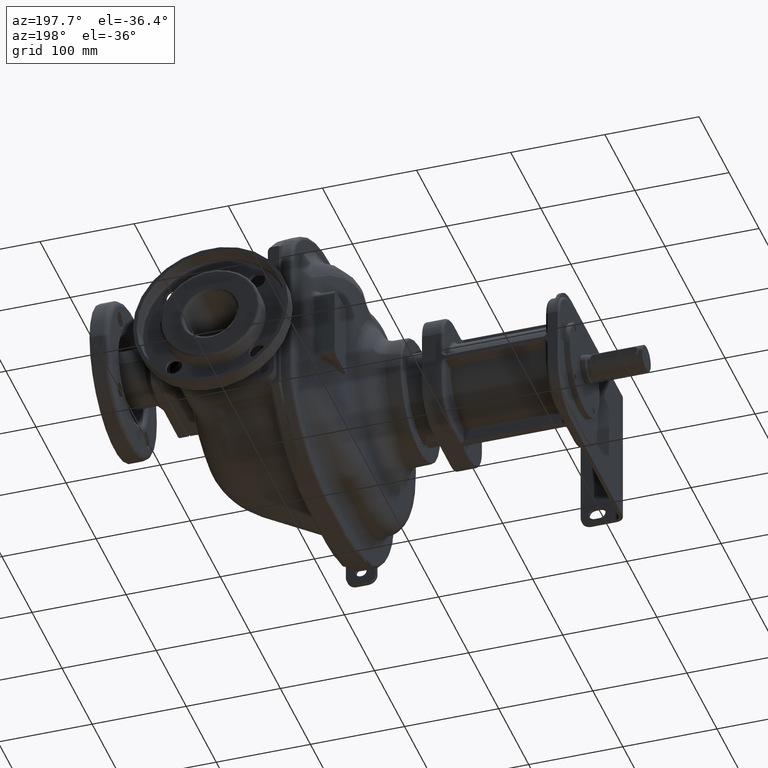
[diagram: clean part render]
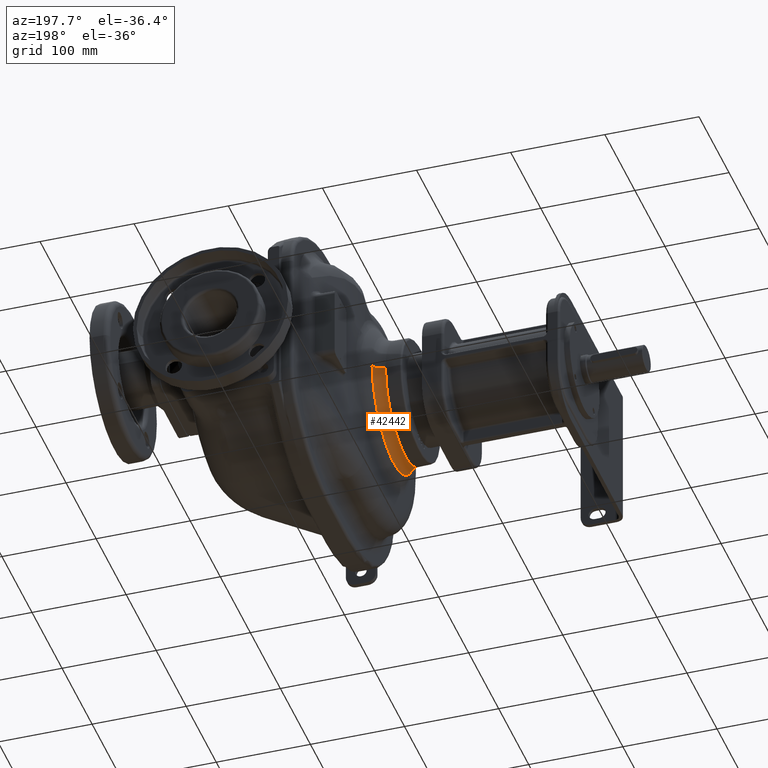
[diagram: same view with one face highlighted and labeled with its STEP entity id]
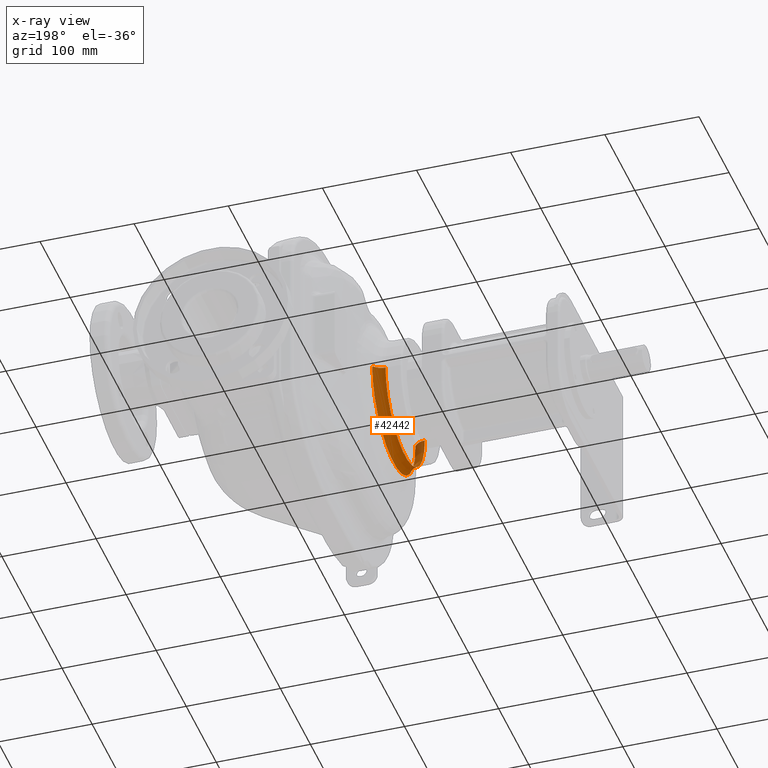
[diagram: x-ray of the same camera — body ghosted, the highlighted face saturated]
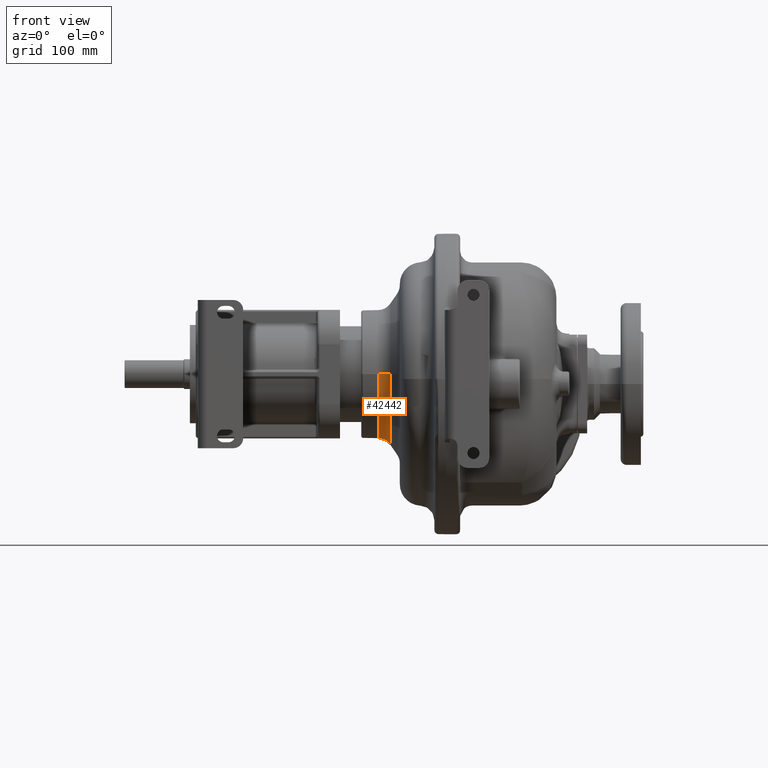
[diagram: same view with one face highlighted and labeled with its STEP entity id]
A machine part, auxiliary view. The second image highlights one B-rep face of the part: STEP entity #42442.
The next image is the same camera in x-ray: the body ghosted, the highlighted face saturated — about 6% of this face is hidden behind the body in this view.
A second angle (front view) of the same face is appended — the face is thin or edge-on in the first view.
In plain terms, the highlighted toroidal blend (fillet) surface has major radius 80.2531 mm and minor (blend) radius 15 mm.
Its self-contained STEP definition (entity closure, byte-faithful):
#12053=CARTESIAN_POINT('',(-8.434400837536E1,0.E0,0.E0));
#12054=DIRECTION('',(-1.E0,0.E0,0.E0));
#12055=DIRECTION('',(0.E0,1.E0,0.E0));
#12056=AXIS2_PLACEMENT_3D('',#12053,#12054,#12055);
#12063=CARTESIAN_POINT('',(-9.663128903969E1,8.025309170341E1,
1.146746031627E-10));
#12064=DIRECTION('',(0.E0,1.428912543844E-12,-1.E0));
#12065=DIRECTION('',(8.191520442893E-1,-5.735764363506E-1,-8.195898027927E-13));
#12066=AXIS2_PLACEMENT_3D('',#12063,#12064,#12065);
#12068=CARTESIAN_POINT('',(-9.663128903969E1,-8.025309170341E1,
-1.146467365326E-10));
#12069=DIRECTION('',(0.E0,-1.428564731787E-12,1.E0));
#12070=DIRECTION('',(8.191520442893E-1,5.735764363507E-1,8.193907281403E-13));
#12071=AXIS2_PLACEMENT_3D('',#12068,#12069,#12070);
#12096=CARTESIAN_POINT('',(-9.636950294312E1,0.E0,0.E0));
#12097=DIRECTION('',(-1.E0,0.E0,0.E0));
#12098=DIRECTION('',(0.E0,1.E0,0.E0));
#12099=AXIS2_PLACEMENT_3D('',#12096,#12097,#12098);
#22927=CARTESIAN_POINT('',(-8.434400837536E1,7.164944515814E1,0.E0));
#22928=CARTESIAN_POINT('',(-8.434400837536E1,-7.164944515814E1,0.E0));
#22929=VERTEX_POINT('',#22927);
#22930=VERTEX_POINT('',#22928);
#22931=CARTESIAN_POINT('',(-9.636950294312E1,6.525537627606E1,0.E0));
#22932=CARTESIAN_POINT('',(-9.636950294312E1,-6.525537627606E1,0.E0));
#22933=VERTEX_POINT('',#22931);
#22934=VERTEX_POINT('',#22932);
#42428=CARTESIAN_POINT('',(-9.663128903969E1,0.E0,0.E0));
#42429=DIRECTION('',(1.E0,0.E0,0.E0));
#42430=DIRECTION('',(0.E0,9.999711519001E-1,7.595746671150E-3));
#42431=AXIS2_PLACEMENT_3D('',#42428,#42429,#42430);
#42432=TOROIDAL_SURFACE('',#42431,8.025309170341E1,1.5E1);
#42433=ORIENTED_EDGE('',*,*,#42414,.F.);
#42435=ORIENTED_EDGE('',*,*,#42434,.T.);
#42437=ORIENTED_EDGE('',*,*,#42436,.T.);
#42439=ORIENTED_EDGE('',*,*,#42438,.F.);
#42440=EDGE_LOOP('',(#42433,#42435,#42437,#42439));
#42441=FACE_OUTER_BOUND('',#42440,.F.);
#12057=CIRCLE('',#12056,7.164944515814E1);
#12067=CIRCLE('',#12066,1.5E1);
#12072=CIRCLE('',#12071,1.5E1);
#12100=CIRCLE('',#12099,6.525537627606E1);
#42414=EDGE_CURVE('',#22929,#22930,#12057,.T.);
#42434=EDGE_CURVE('',#22929,#22933,#12067,.T.);
#42436=EDGE_CURVE('',#22933,#22934,#12100,.T.);
#42438=EDGE_CURVE('',#22930,#22934,#12072,.T.);
#42442=ADVANCED_FACE('',(#42441),#42432,.F.);